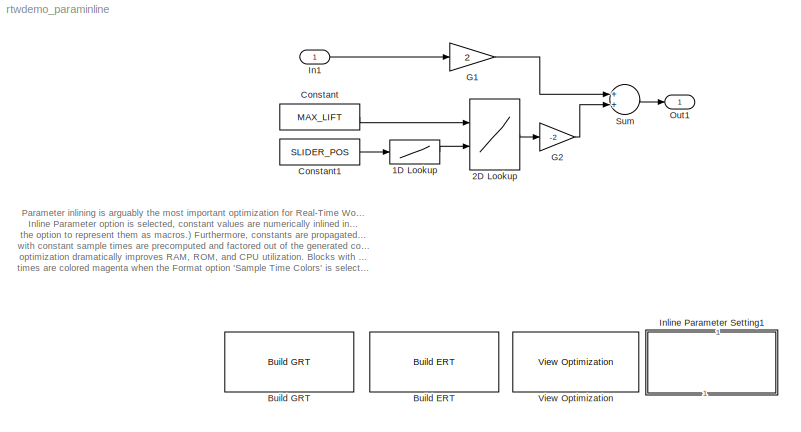
MODEL rtwdemo_paraminline
KIND model
CONFIG PreLoadFcn = rtwdemo_paraminline_data
BLOCK [Lookup] 1D Lookup
  DialogController = Simulink.DDGSource
  InputValues = T1Break
  OutputValues = T1Data
BLOCK [Lookup2D] 2D Lookup
  ColumnIndex = T2Break
  DialogController = Simulink.DDGSource
  OutScaling = 2^-10
  OutputValues = T2Data
  RowIndex = T2Break
  SaturateOnIntegerOverflow = off
BLOCK [Reference] Build ERT  REF=rtwdemowidgets/Build ERT
  Ports = []
  ShowPortLabels = on
  SourceBlock = rtwdemowidgets/Build ERT
  attrib_overrides = {}
BLOCK [Reference] Build GRT  REF=rtwdemowidgets/Build GRT
  Ports = []
  ShowPortLabels = on
  SourceBlock = rtwdemowidgets/Build GRT
  attrib_overrides = {}
BLOCK [Constant] Constant
  Value = MAX_LIFT
BLOCK [Constant] Constant1
  Value = SLIDER_POS
BLOCK [Gain] G1
  Gain = 2
BLOCK [Gain] G2
  Gain = -2
BLOCK [Inport] In1
  IconDisplay = Port number
  LatchInput = off
  Port = 1
  PortDimensions = 1
BLOCK [SubSystem] Inline Parameter Setting1
  MaskDisplay = disp(sprintf('Display Sample\\nTime Colors\\n(double-click)'))
  MaskIconFrame = on
  MaskIconOpaque = on
  MaskIconRotate = none
  MaskIconUnits = autoscale
  MinAlgLoopOccurrences = off
  OpenFcn = m=get_param(bdroot,'name'); eval([m,'([],[],[],''compile'');']); eval([m,'([],[],[],''term'');']);
  Ports = []
  PropExecContextAcrossSSBoundary = on
  RTWSystemCode = Auto
  TreatAsAtomicUnit = off
BLOCK [Outport] Out1
  BusOutputAsStruct = off
  IconDisplay = Port number
BLOCK [Sum] Sum
  InputSameDT = off
  OutDataTypeMode = Inherit via internal rule
  OutScaling = 2^-10
  Ports = [2, 1]
  SaturateOnIntegerOverflow = off
BLOCK [Reference] View Optimization  REF=rtwdemowidgets/View Optimization
  Ports = []
  ShowPortLabels = on
  SourceBlock = rtwdemowidgets/View Optimization
ANNOTATION (root): Parameter inlining is arguably the most important optimization for Real-Time Workshop. When the\nInline Parameter option is selected, constant values are numerically inlined into the code (with\nthe option to represent them as macros.) Furthermore, constants are propagated, whereby blocks\nwith constant sample times are precomputed and factored out of the generated code. This\noptimization dramati...<+157ch>
LINE 1D Lookup:1 -> 2D Lookup:2
LINE 2D Lookup:1 -> G2:1
LINE Constant1:1 -> 1D Lookup:1
LINE Constant:1 -> 2D Lookup:1
LINE G1:1 -> Sum:1
LINE G2:1 -> Sum:2
LINE In1:1 -> G1:1
LINE Sum:1 -> Out1:1
